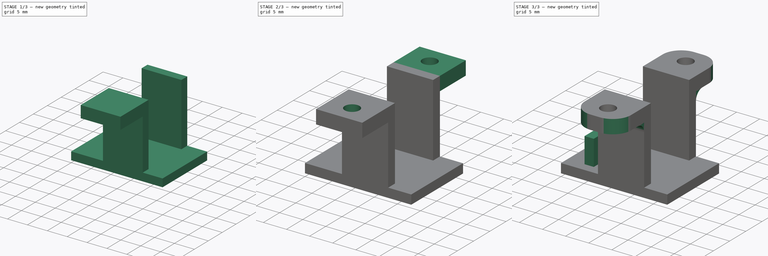
[diagram: build sequence overview — one tinted view per stage of 3, left to right]
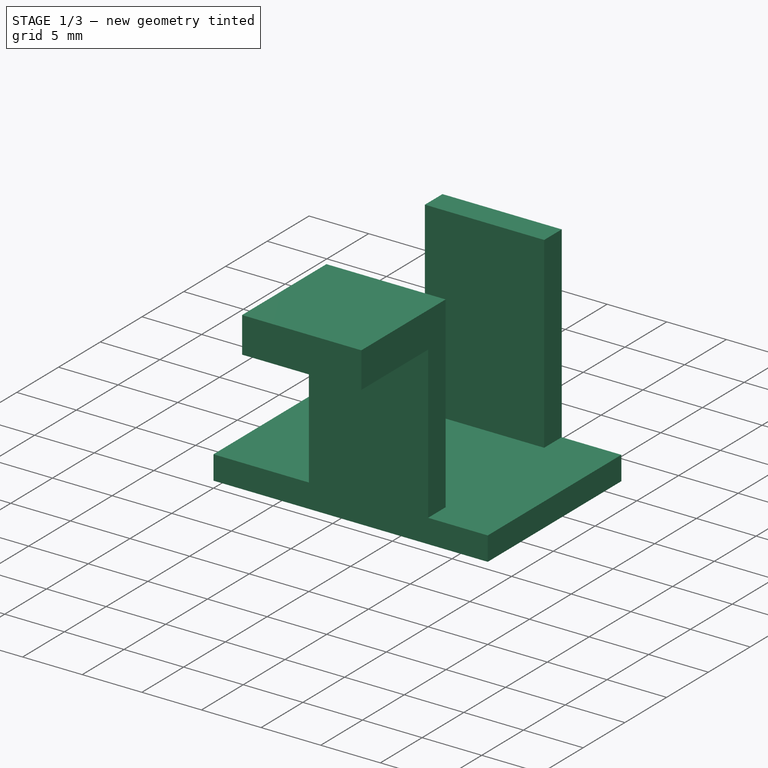
[diagram: stage 1 of 3 — iso view after this stage's code; geometry added in this stage tinted green]
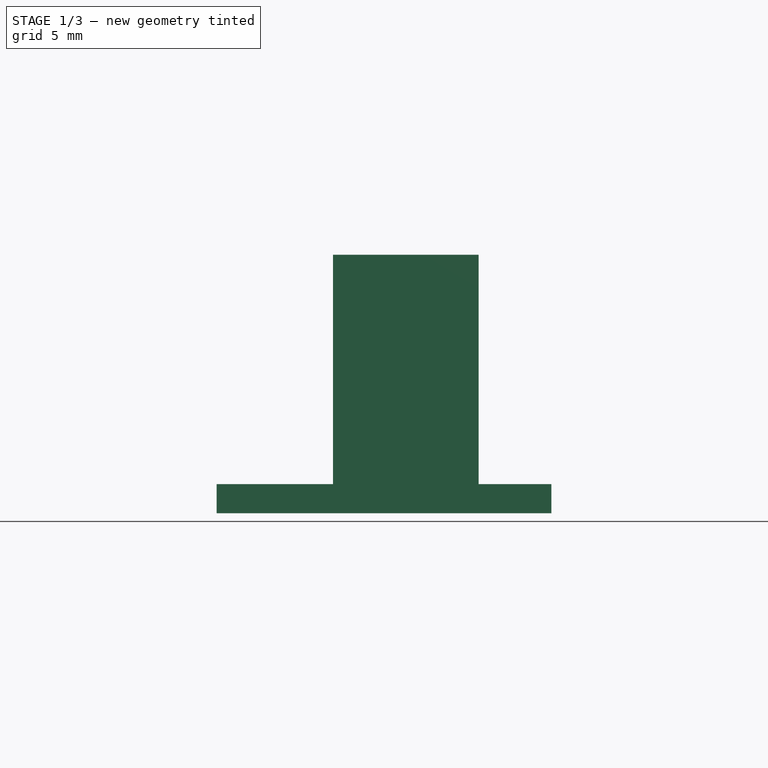
[diagram: stage 1 of 3 — front view after this stage's code; geometry added in this stage tinted green]
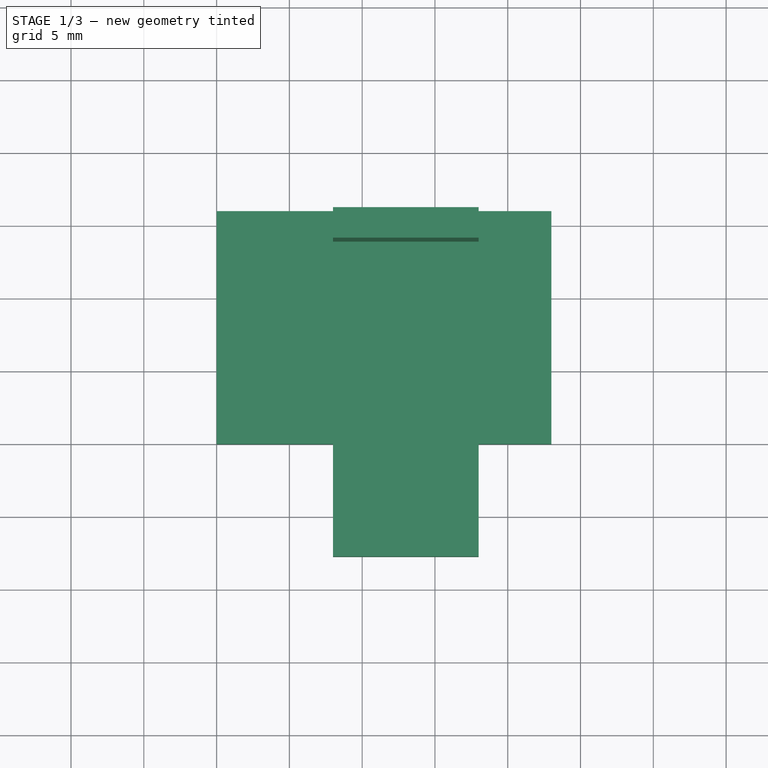
[diagram: stage 1 of 3 — top view after this stage's code; geometry added in this stage tinted green]
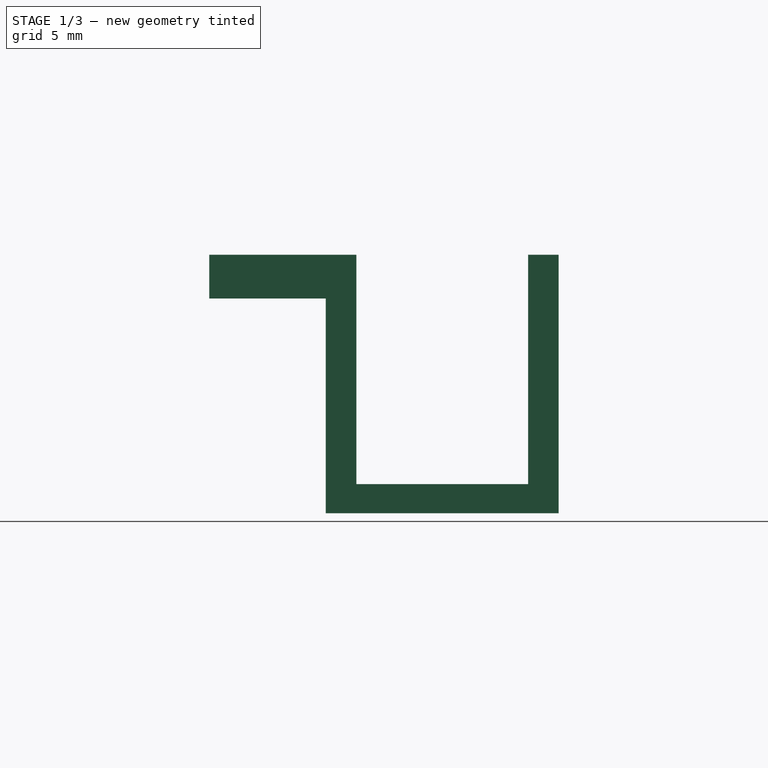
[diagram: stage 1 of 3 — right view after this stage's code; geometry added in this stage tinted green]
FCSTD DOCUMENT  (FreeCAD 0.21R33668 +26 (Git))
Label: grapa motor
License: All rights reserved
LicenseURL: https://en.wikipedia.org/wiki/All_rights_reserved
objects: Sketcher::SketchObject×6, PartDesign::Pad×5, PartDesign::Fillet×2, PartDesign::Pocket×1, PartDesign::Body×1
note: 23 computed .brp shape members not serialized (recipe doc carries the construction recipe); baked Part::Feature solids carry a one-line shape summary decoded from their .brp

FEATURE [Sketcher::SketchObject] Sketch
  FullyConstrained = true
  MapMode = 5
  Support = -> [XY_Plane]
  sketch-geometry (4):
    g0: LineSegment StartX=0 StartY=0 StartZ=0 EndX=23 EndY=0 EndZ=0
    g1: LineSegment StartX=23 StartY=0 StartZ=0 EndX=23 EndY=16 EndZ=0
    g2: LineSegment StartX=23 StartY=16 StartZ=0 EndX=0 EndY=16 EndZ=0
    g3: LineSegment StartX=0 StartY=16 StartZ=0 EndX=0 EndY=0 EndZ=0
  constraints (11):
    c: Coincident(g0,g1)
    c: Coincident(g1,g2)
    c: Coincident(g2,g3)
    c: Coincident(g3,g0)
    c: Horizontal(g0)
    c: Horizontal(g2)
    c: Vertical(g1)
    c: Vertical(g3)
    c: Coincident(g0,g-1)
    c: DistanceX(g2,g2) = 23
    c: DistanceY(g1,g1) = 16
FEATURE [PartDesign::Pad] Pad  label="base"
  Direction = (0,0,1)
  Length = 2
  Length2 = 10
  Profile = -> Sketch
  ReferenceAxis = -> Sketch [N_Axis]
  Type = 0
FEATURE [Sketcher::SketchObject] Sketch001
  FullyConstrained = true
  MapMode = 5
  Placement = pos=(0,0,2) rot=(0,0,1;0rad)
  Support = -> [Pad]
  sketch-geometry (8):
    g0: LineSegment StartX=8 StartY=2.1 StartZ=0 EndX=18 EndY=2.1 EndZ=0
    g1: LineSegment StartX=18 StartY=2.1 StartZ=0 EndX=18 EndY=0 EndZ=0
    g2: LineSegment StartX=18 StartY=0 StartZ=0 EndX=8 EndY=0 EndZ=0
    g3: LineSegment StartX=8 StartY=0 StartZ=0 EndX=8 EndY=2.1 EndZ=0
    g4: LineSegment StartX=8 StartY=16 StartZ=0 EndX=18 EndY=16 EndZ=0
    g5: LineSegment StartX=18 StartY=16 StartZ=0 EndX=18 EndY=13.9 EndZ=0
    g6: LineSegment StartX=18 StartY=13.9 StartZ=0 EndX=8 EndY=13.9 EndZ=0
    g7: LineSegment StartX=8 StartY=13.9 StartZ=0 EndX=8 EndY=16 EndZ=0
  constraints (24):
    c: Coincident(g0,g1)
    c: Coincident(g1,g2)
    c: Coincident(g2,g3)
    c: Coincident(g3,g0)
    c: Horizontal(g0)
    c: Horizontal(g2)
    c: Vertical(g1)
    c: Vertical(g3)
    c: PointOnObject(g1,g-1)
    c: Coincident(g4,g5)
    c: Coincident(g5,g6)
    c: Coincident(g6,g7)
    c: Coincident(g7,g4)
    c: Horizontal(g4)
    c: Horizontal(g6)
    c: Vertical(g5)
    c: Vertical(g7)
    c: DistanceX(g2,g2) = 10
    c: DistanceY(g1,g1) = 2.1
    c: DistanceX(g-1,g2) = 8
    c: DistanceX(g0,g6) = 0
    c: DistanceX(g4,g4) = 10
    c: DistanceY(g5,g5) = 2.1
    c: DistanceY(g0,g5) = 11.8
FEATURE [PartDesign::Pad] Pad001  label="garras"
  BaseFeature = -> Pad
  Direction = (0,0,1)
  Length = 15.75
  Length2 = 10
  Profile = -> Sketch001
  ReferenceAxis = -> Sketch001 [N_Axis]
  Type = 0
FEATURE [Sketcher::SketchObject] Sketch002
  FullyConstrained = true
  MapMode = 5
  Placement = pos=(0,0,0) rot=(1,0,0;1.5708rad)
  Support = -> [Pad001]
  sketch-geometry (4):
    g0: LineSegment StartX=8 StartY=17.75 StartZ=0 EndX=18 EndY=17.75 EndZ=0
    g1: LineSegment StartX=18 StartY=17.75 StartZ=0 EndX=18 EndY=14.75 EndZ=0
    g2: LineSegment StartX=18 StartY=14.75 StartZ=0 EndX=8 EndY=14.75 EndZ=0
    g3: LineSegment StartX=8 StartY=14.75 StartZ=0 EndX=8 EndY=17.75 EndZ=0
  constraints (12):
    c: Coincident(g0,g1)
    c: Coincident(g1,g2)
    c: Coincident(g2,g3)
    c: Coincident(g3,g0)
    c: Horizontal(g0)
    c: Horizontal(g2)
    c: Vertical(g1)
    c: Vertical(g3)
    c: DistanceX(g-1,g2) = 8
    c: DistanceY(g-1,g2) = 14.75
    c: DistanceY(g3,g3) = 3
    c: DistanceX(g0,g0) = 10
FEATURE [PartDesign::Pad] Pad002  label="base garras 1"
  BaseFeature = -> Pad001
  Direction = (0,-1,2e-16)
  Length = 8
  Length2 = 10
  Profile = -> Sketch002
  ReferenceAxis = -> Sketch002 [N_Axis]
  Type = 0
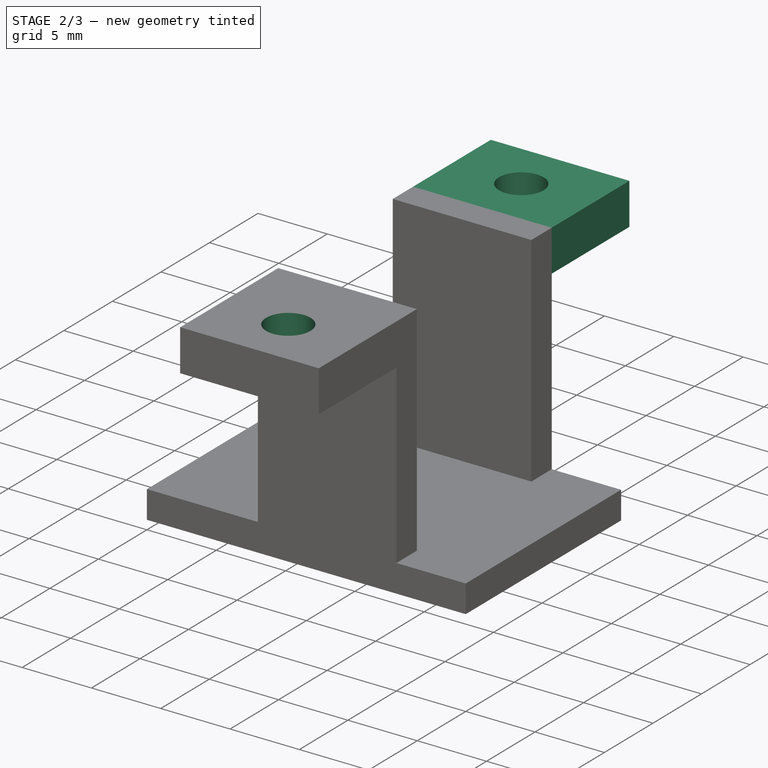
[diagram: stage 2 of 3 — iso view after this stage's code; geometry added in this stage tinted green]
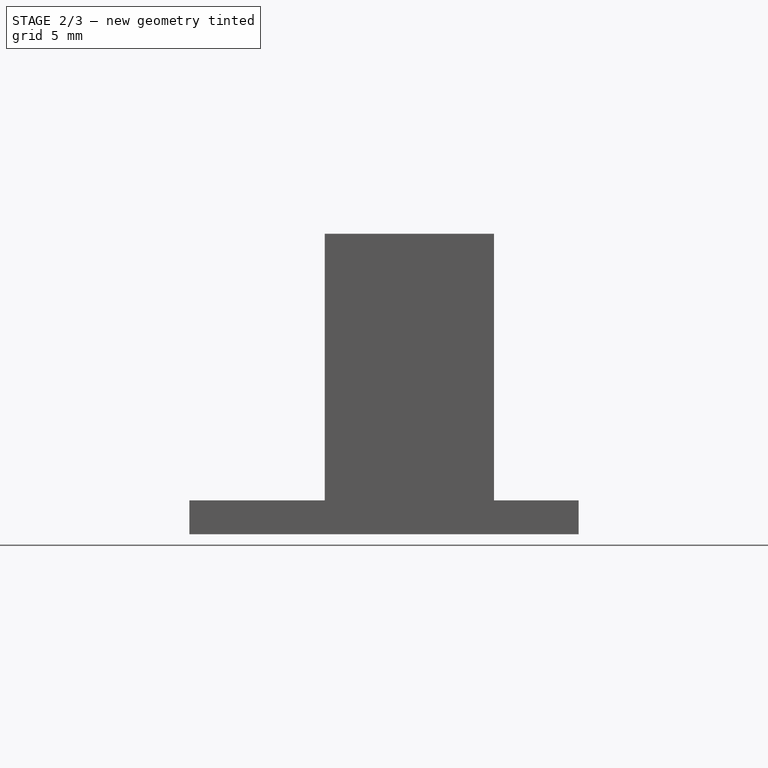
[diagram: stage 2 of 3 — front view after this stage's code; geometry added in this stage tinted green]
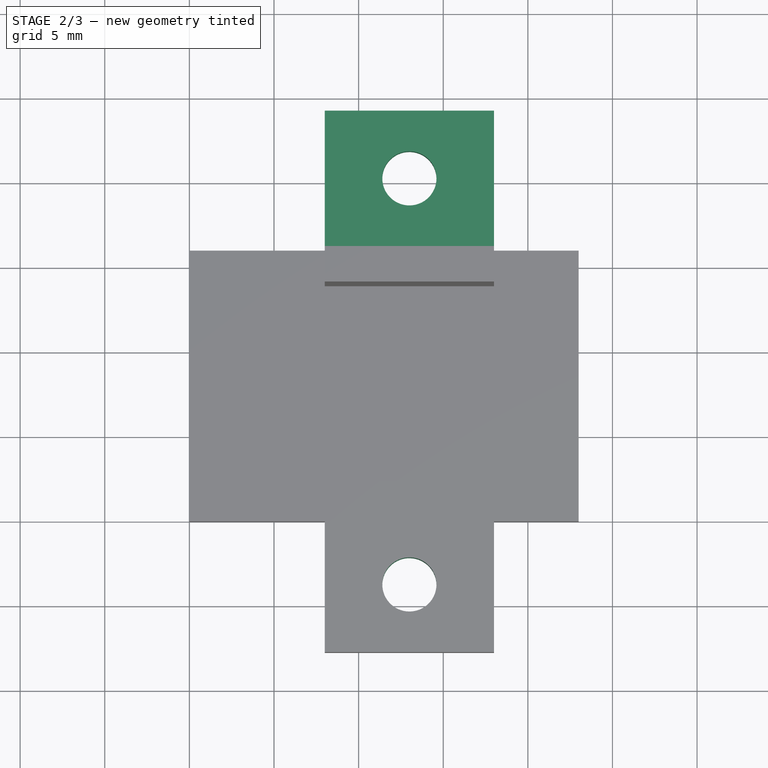
[diagram: stage 2 of 3 — top view after this stage's code; geometry added in this stage tinted green]
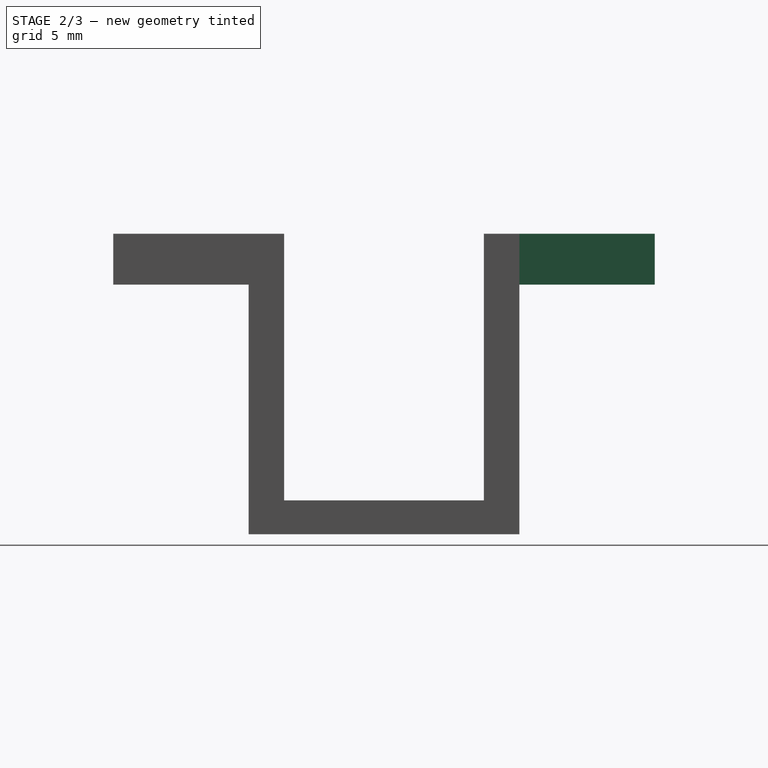
[diagram: stage 2 of 3 — right view after this stage's code; geometry added in this stage tinted green]
FEATURE [Sketcher::SketchObject] Sketch003
  FullyConstrained = true
  MapMode = 5
  Placement = pos=(0,16,0) rot=(0,0.707107,0.707107;3.14159rad)
  Support = -> [Pad002]
  sketch-geometry (4):
    g0: LineSegment StartX=-18 StartY=17.75 StartZ=0 EndX=-8 EndY=17.75 EndZ=0
    g1: LineSegment StartX=-8 StartY=17.75 StartZ=0 EndX=-8 EndY=14.75 EndZ=0
    g2: LineSegment StartX=-8 StartY=14.75 StartZ=0 EndX=-18 EndY=14.75 EndZ=0
    g3: LineSegment StartX=-18 StartY=14.75 StartZ=0 EndX=-18 EndY=17.75 EndZ=0
  constraints (12):
    c: Coincident(g0,g1)
    c: Coincident(g1,g2)
    c: Coincident(g2,g3)
    c: Coincident(g3,g0)
    c: Horizontal(g0)
    c: Horizontal(g2)
    c: Vertical(g1)
    c: Vertical(g3)
    c: DistanceX(g1,g-1) = 8
    c: DistanceY(g3,g3) = 3
    c: DistanceX(g0,g0) = 10
    c: DistanceY(g-1,g1) = 14.75
FEATURE [PartDesign::Pad] Pad003  label="base garras 2"
  BaseFeature = -> Pad002
  Direction = (0,1,-2e-16)
  Length = 8
  Length2 = 10
  Profile = -> Sketch003
  ReferenceAxis = -> Sketch003 [N_Axis]
  Type = 0
FEATURE [Sketcher::SketchObject] Sketch004
  FullyConstrained = true
  MapMode = 5
  Placement = pos=(0,3.9e-15,17.75) rot=(0,0,1;0rad)
  Support = -> [Pad003]
  sketch-geometry (2):
    g0: Circle CenterX=13 CenterY=-4 CenterZ=0 NormalX=0 NormalY=0 NormalZ=1 AngleXU=0 Radius=1.6
    g1: Circle CenterX=13 CenterY=20 CenterZ=0 NormalX=0 NormalY=0 NormalZ=1 AngleXU=0 Radius=1.6
  constraints (6):
    c: DistanceY(g0,g-1) = 4
    c: DistanceX(g-1,g0) = 13
    c: Diameter(g0) = 3.2
    c: DistanceX(g-1,g1) = 13
    c: DistanceY(g-1,g1) = 20
    c: Diameter(g1) = 3.2
FEATURE [PartDesign::Pocket] Pocket  label="agujeros base garras"
  BaseFeature = -> Pad003
  Direction = (0,-2e-16,-1)
  Length = 5
  Length2 = 5
  Profile = -> Sketch004
  ReferenceAxis = -> Sketch004 [N_Axis]
  Type = 0
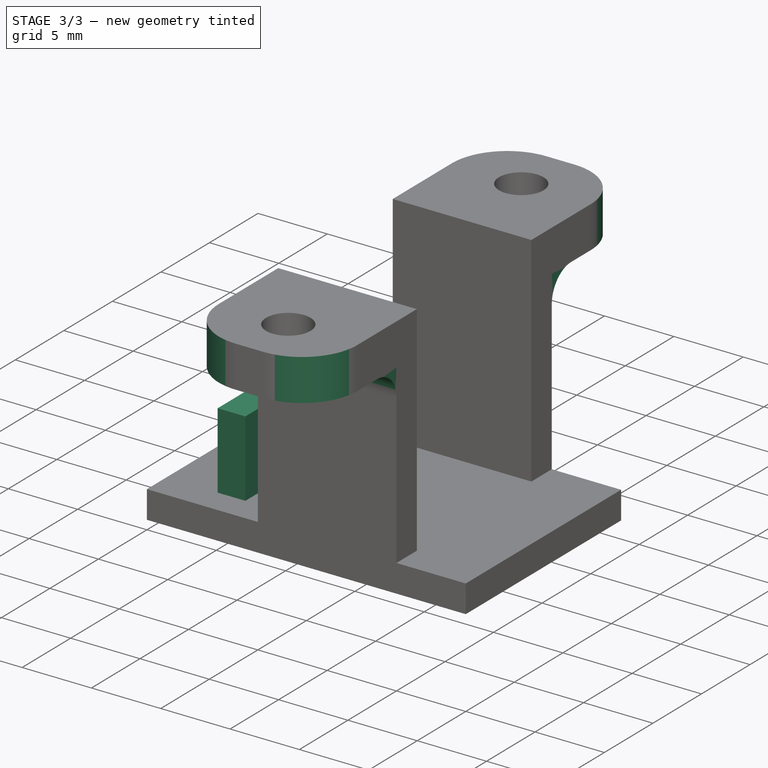
[diagram: stage 3 of 3 — iso view after this stage's code; geometry added in this stage tinted green]
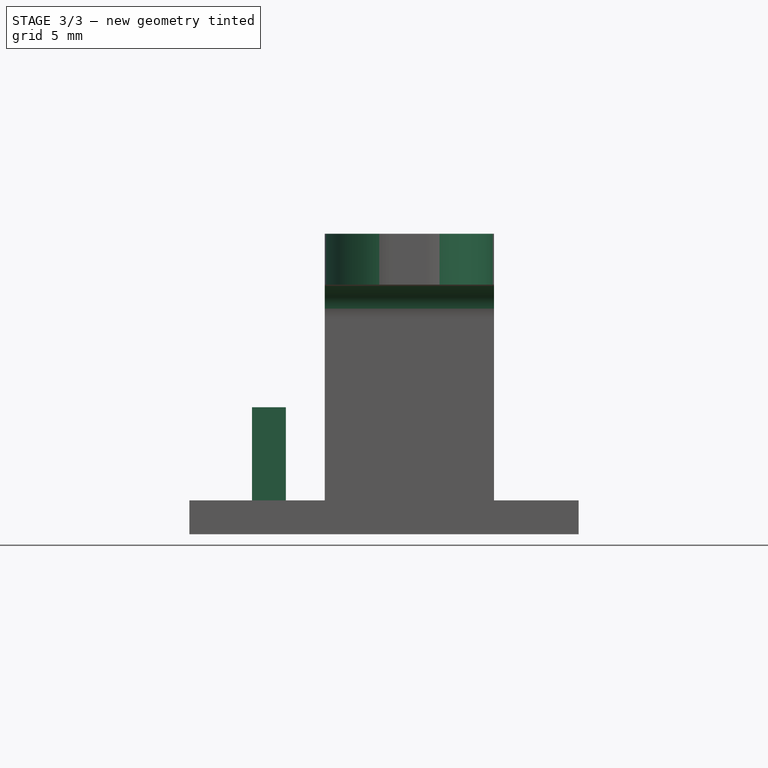
[diagram: stage 3 of 3 — front view after this stage's code; geometry added in this stage tinted green]
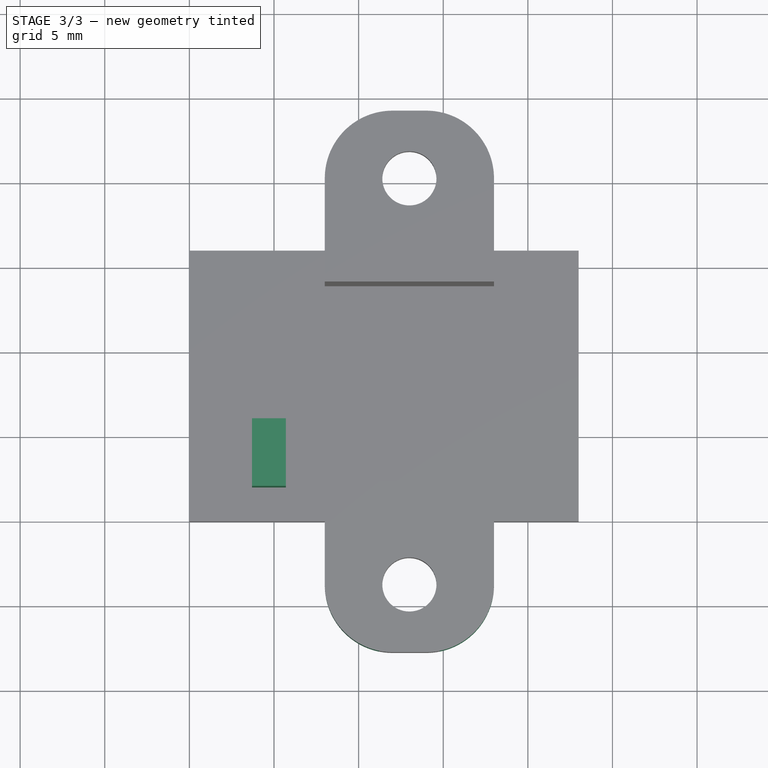
[diagram: stage 3 of 3 — top view after this stage's code; geometry added in this stage tinted green]
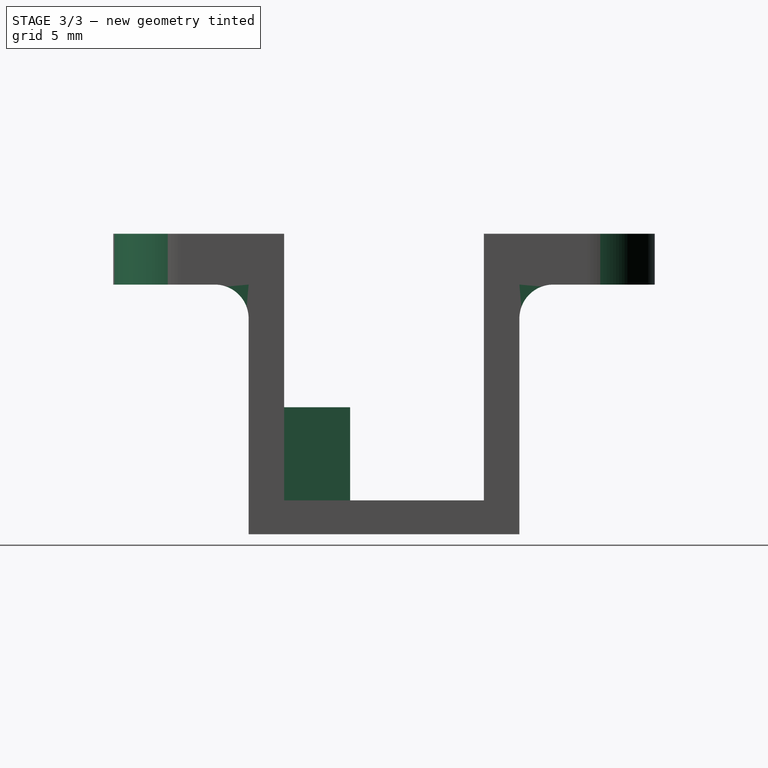
[diagram: stage 3 of 3 — right view after this stage's code; geometry added in this stage tinted green]
FEATURE [Sketcher::SketchObject] Sketch005
  FullyConstrained = true
  MapMode = 5
  Placement = pos=(0,0,2) rot=(0,0,1;0rad)
  sketch-geometry (4):
    g0: LineSegment StartX=3.7 StartY=6 StartZ=0 EndX=5.7 EndY=6 EndZ=0
    g1: LineSegment StartX=5.7 StartY=6 StartZ=0 EndX=5.7 EndY=2 EndZ=0
    g2: LineSegment StartX=5.7 StartY=2 StartZ=0 EndX=3.7 EndY=2 EndZ=0
    g3: LineSegment StartX=3.7 StartY=2 StartZ=0 EndX=3.7 EndY=6 EndZ=0
  constraints (12):
    c: Coincident(g0,g1)
    c: Coincident(g1,g2)
    c: Coincident(g2,g3)
    c: Coincident(g3,g0)
    c: Horizontal(g0)
    c: Horizontal(g2)
    c: Vertical(g1)
    c: Vertical(g3)
    c: DistanceY(g1,g1) = 4
    c: DistanceX(g0,g0) = 2
    c: DistanceX(g-1,g2) = 3.7
    c: DistanceY(g-1,g2) = 2
FEATURE [PartDesign::Pad] Pad004  label="Índice"
  BaseFeature = -> Pocket
  Direction = (0,0,1)
  Length = 5.5
  Length2 = 10
  Profile = -> Sketch005
  ReferenceAxis = -> Sketch005 [N_Axis]
  Type = 0
FEATURE [PartDesign::Fillet] Fillet
  Base = -> Pad004 [Edge58,Edge27]
  BaseFeature = -> Pad004
  Radius = 2
  SupportTransform = false
  UseAllEdges = false
FEATURE [PartDesign::Fillet] Fillet001
  Base = -> Fillet [Edge24,Edge41,Edge81,Edge76]
  BaseFeature = -> Fillet
  Radius = 4
  SupportTransform = false
  UseAllEdges = false
FEATURE [PartDesign::Body] Body  label="Cuerpo"
  Group = -> [Sketch,Pad,Sketch001,Pad001,Sketch002,Pad002,Sketch003,Pad003,Sketch004,Pocket,Sketch005,Pad004,Fillet,Fillet001]
  Origin = -> Origin
  Tip = -> Fillet001
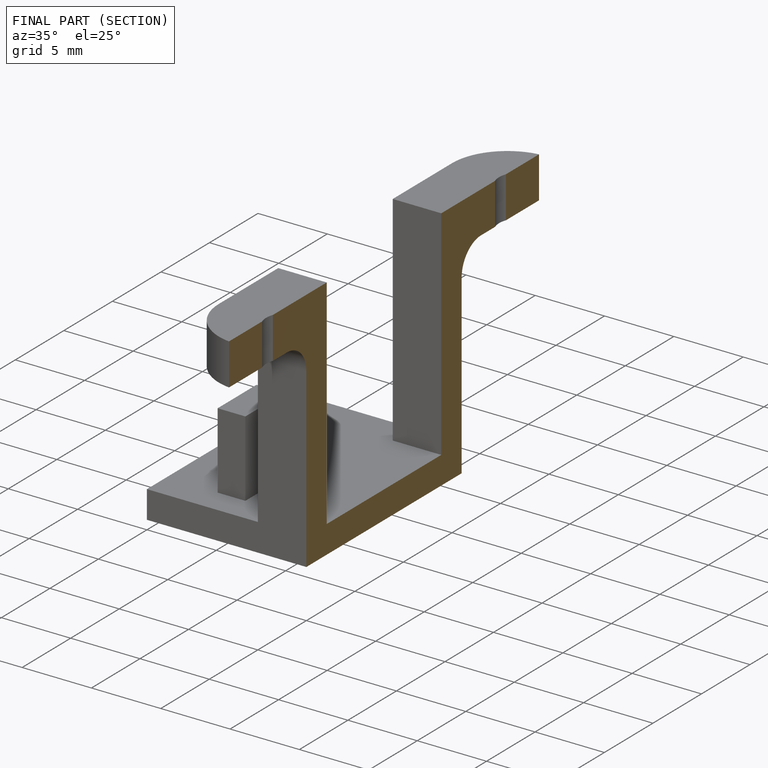
[diagram: finished part — half-section view (interior)]
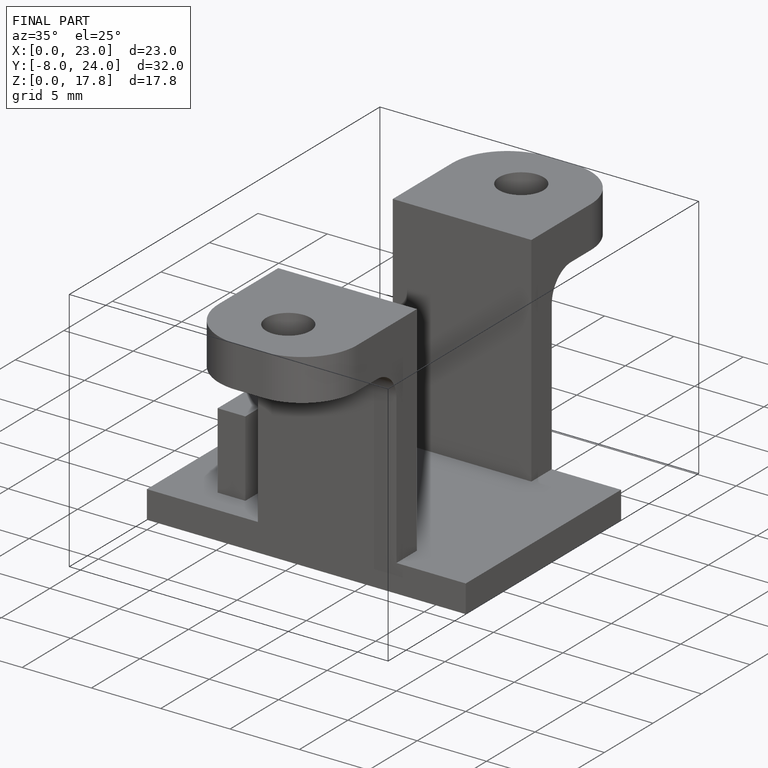
[diagram: finished part — iso view with bounding-box wireframe]
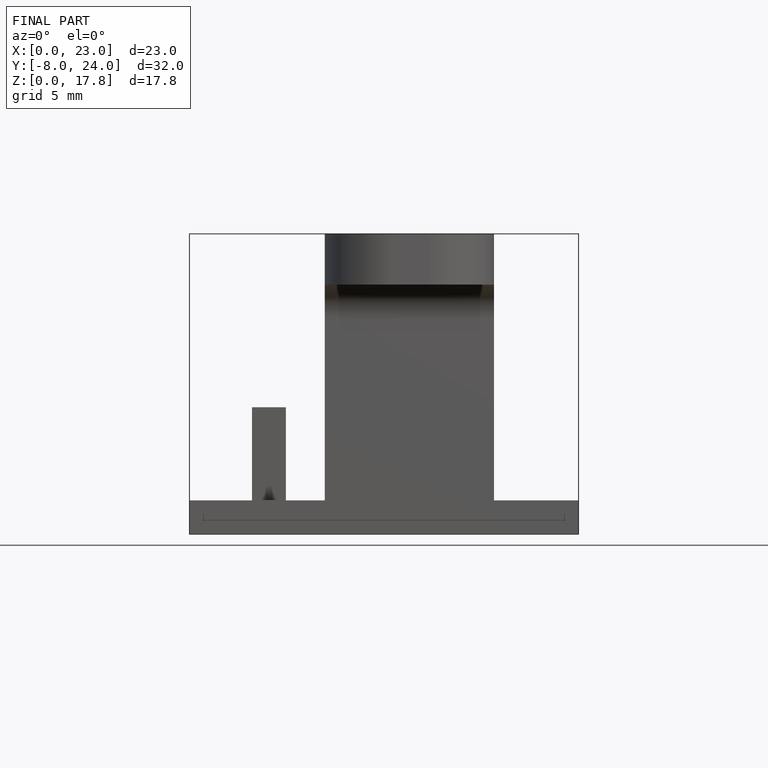
[diagram: finished part — front view with bounding-box wireframe]
